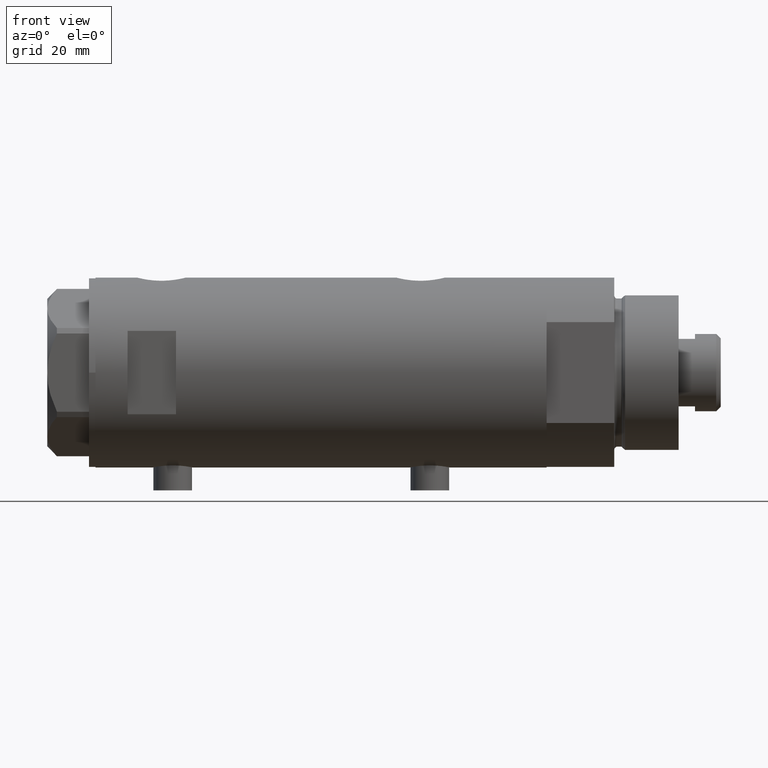
[diagram: clean part render]
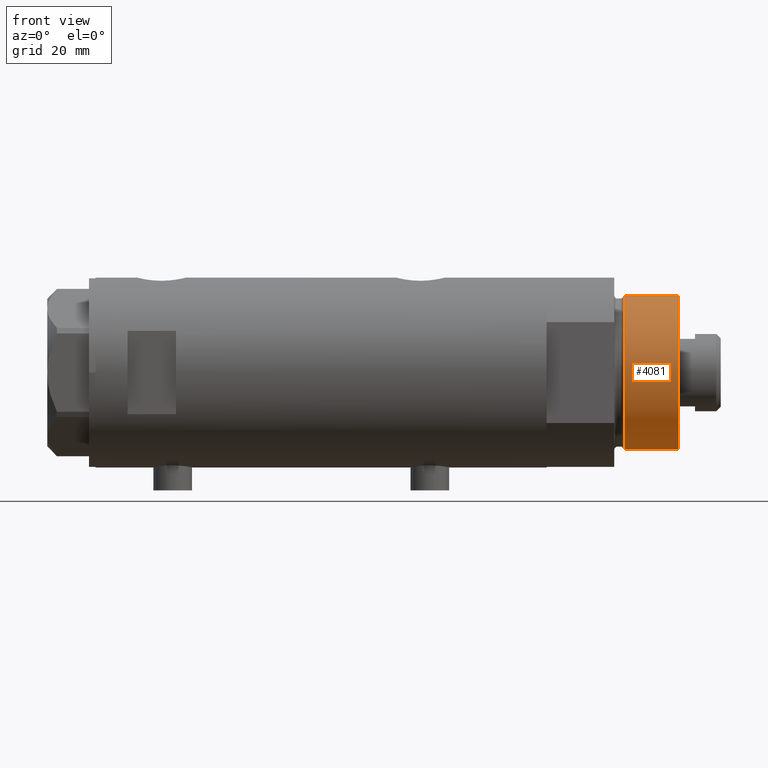
[diagram: same view with one face highlighted and labeled with its STEP entity id]
A machine part, front view. The second image highlights one B-rep face of the part: STEP entity #4081.
In plain terms, the highlighted cylindrical surface (partial cylindrical patch) has radius 24 mm, axis along (-1, -0, 0).
Its self-contained STEP definition (entity closure, byte-faithful):
#78 = ORIENTED_EDGE ( 'NONE', *, *, #2689, .T. ) ;
#134 = CYLINDRICAL_SURFACE ( 'NONE', #1034, 24.00000000000000355 ) ;
#175 = AXIS2_PLACEMENT_3D ( 'NONE', #2914, #4390, #2882 ) ;
#381 = DIRECTION ( 'NONE',  ( -0.000000000000000000, -0.000000000000000000, -1.000000000000000000 ) ) ;
#869 = VERTEX_POINT ( 'NONE', #1246 ) ;
#880 = DIRECTION ( 'NONE',  ( -0.000000000000000000, -0.000000000000000000, -1.000000000000000000 ) ) ;
#955 = VECTOR ( 'NONE', #880, 1000.000000000000000 ) ;
#1034 = AXIS2_PLACEMENT_3D ( 'NONE', #4590, #381, #2208 ) ;
#1246 = CARTESIAN_POINT ( 'NONE',  ( 24.00000000000000355, 2.939152317953648289E-15, 41.00000000000000000 ) ) ;
#1552 = VECTOR ( 'NONE', #4428, 1000.000000000000000 ) ;
#2208 = DIRECTION ( 'NONE',  ( -1.000000000000000000, 0.000000000000000000, 0.000000000000000000 ) ) ;
#2279 = EDGE_CURVE ( 'NONE', #3435, #869, #3041, .T. ) ;
#2556 = CARTESIAN_POINT ( 'NONE',  ( 24.00000000000000355, 2.939152317953648289E-15, 24.37384048104054557 ) ) ;
#2563 = AXIS2_PLACEMENT_3D ( 'NONE', #4452, #4497, #2597 ) ;
#2575 = FACE_OUTER_BOUND ( 'NONE', #3646, .T. ) ;
#2597 = DIRECTION ( 'NONE',  ( 1.000000000000000000, 0.000000000000000000, 0.000000000000000000 ) ) ;
#2689 = EDGE_CURVE ( 'NONE', #3435, #2787, #4763, .T. ) ;
#2727 = LINE ( 'NONE', #3773, #955 ) ;
#2787 = VERTEX_POINT ( 'NONE', #3920 ) ;
#2882 = DIRECTION ( 'NONE',  ( 1.000000000000000000, 0.000000000000000000, 0.000000000000000000 ) ) ;
#2914 = CARTESIAN_POINT ( 'NONE',  ( 0.000000000000000000, 0.000000000000000000, 24.37384048104054557 ) ) ;
#3041 = CIRCLE ( 'NONE', #2563, 24.00000000000000355 ) ;
#3154 = ORIENTED_EDGE ( 'NONE', *, *, #3572, .T. ) ;
#3435 = VERTEX_POINT ( 'NONE', #3903 ) ;
#3542 = ORIENTED_EDGE ( 'NONE', *, *, #2279, .F. ) ;
#3572 = EDGE_CURVE ( 'NONE', #2787, #3594, #4211, .T. ) ;
#3594 = VERTEX_POINT ( 'NONE', #2556 ) ;
#3646 = EDGE_LOOP ( 'NONE', ( #3844, #3542, #78, #3154 ) ) ;
#3683 = CARTESIAN_POINT ( 'NONE',  ( -24.00000000000000355, 0.000000000000000000, 41.00000000000000000 ) ) ;
#3773 = CARTESIAN_POINT ( 'NONE',  ( 24.00000000000000355, 2.939152317953648289E-15, 41.00000000000000000 ) ) ;
#3844 = ORIENTED_EDGE ( 'NONE', *, *, #4547, .F. ) ;
#3903 = CARTESIAN_POINT ( 'NONE',  ( -24.00000000000000355, 0.000000000000000000, 41.00000000000000000 ) ) ;
#3920 = CARTESIAN_POINT ( 'NONE',  ( -24.00000000000000355, 0.000000000000000000, 24.37384048104054557 ) ) ;
#4081 = ADVANCED_FACE ( 'NONE', ( #2575 ), #134, .T. ) ;
#4211 = CIRCLE ( 'NONE', #175, 24.00000000000000355 ) ;
#4390 = DIRECTION ( 'NONE',  ( -0.000000000000000000, -0.000000000000000000, 1.000000000000000000 ) ) ;
#4428 = DIRECTION ( 'NONE',  ( -0.000000000000000000, -0.000000000000000000, -1.000000000000000000 ) ) ;
#4452 = CARTESIAN_POINT ( 'NONE',  ( 0.000000000000000000, 0.000000000000000000, 41.00000000000000000 ) ) ;
#4497 = DIRECTION ( 'NONE',  ( 0.000000000000000000, 0.000000000000000000, 1.000000000000000000 ) ) ;
#4547 = EDGE_CURVE ( 'NONE', #869, #3594, #2727, .T. ) ;
#4590 = CARTESIAN_POINT ( 'NONE',  ( 0.000000000000000000, 0.000000000000000000, 41.00000000000000000 ) ) ;
#4763 = LINE ( 'NONE', #3683, #1552 ) ;